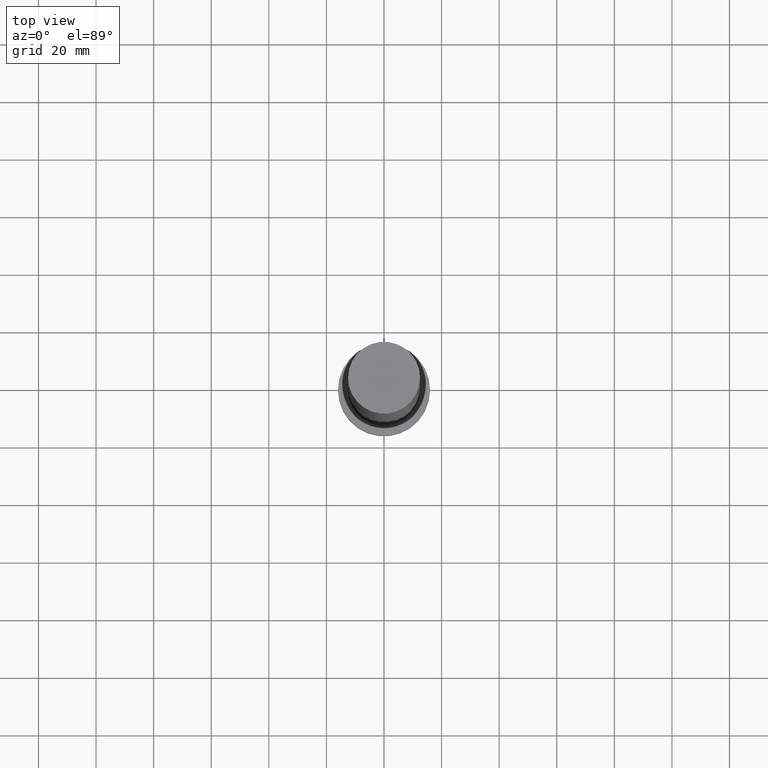
[diagram: clean part render]
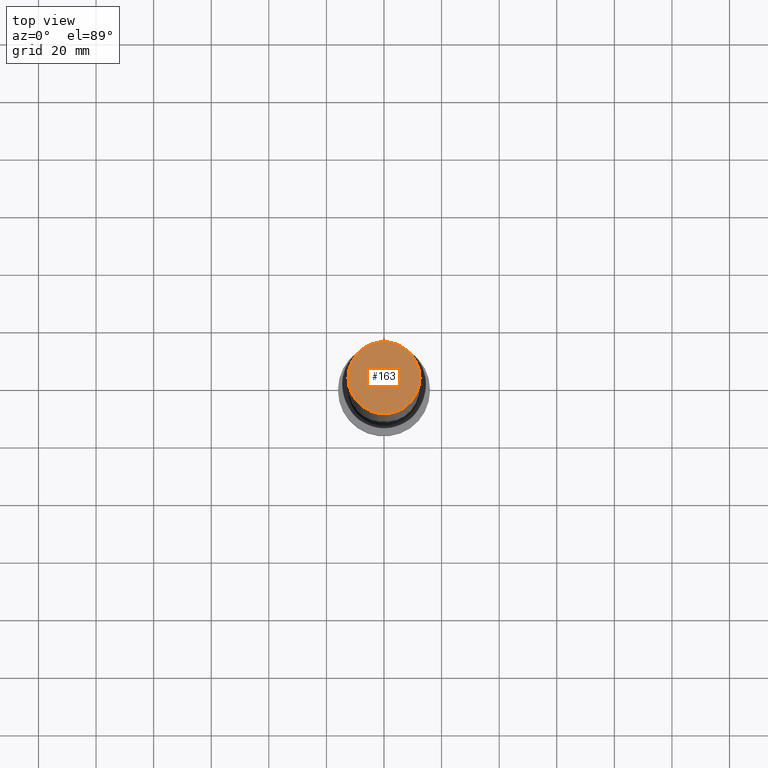
[diagram: same view with one face highlighted and labeled with its STEP entity id]
A machine part, top view. The second image highlights one B-rep face of the part: STEP entity #163.
In plain terms, the highlighted planar face has unit normal (0, 0, 1).
Its self-contained STEP definition (entity closure, byte-faithful):
#2 = FACE_OUTER_BOUND ( 'NONE', #192, .T. ) ;
#19 = PLANE ( 'NONE',  #237 ) ;
#42 = CIRCLE ( 'NONE', #215, 12.50000000000000000 ) ;
#50 = ORIENTED_EDGE ( 'NONE', *, *, #244, .T. ) ;
#72 = EDGE_CURVE ( 'NONE', #236, #240, #42, .T. ) ;
#73 = DIRECTION ( 'NONE',  ( 0.000000000000000000, 0.000000000000000000, 1.000000000000000000 ) ) ;
#77 = DIRECTION ( 'NONE',  ( 1.000000000000000000, 0.000000000000000000, -0.000000000000000000 ) ) ;
#95 = ORIENTED_EDGE ( 'NONE', *, *, #72, .T. ) ;
#96 = CARTESIAN_POINT ( 'NONE',  ( 12.50000000000000000, 1.530808498934191521E-15, 250.0000000000000000 ) ) ;
#103 = DIRECTION ( 'NONE',  ( 0.000000000000000000, 0.000000000000000000, 1.000000000000000000 ) ) ;
#131 = CARTESIAN_POINT ( 'NONE',  ( 0.000000000000000000, 0.000000000000000000, 250.0000000000000000 ) ) ;
#145 = DIRECTION ( 'NONE',  ( 1.000000000000000000, 0.000000000000000000, 0.000000000000000000 ) ) ;
#159 = CARTESIAN_POINT ( 'NONE',  ( 0.000000000000000000, 0.000000000000000000, 250.0000000000000000 ) ) ;
#163 = ADVANCED_FACE ( 'NONE', ( #2 ), #19, .T. ) ;
#170 = CARTESIAN_POINT ( 'NONE',  ( -12.50000000000000000, 0.000000000000000000, 250.0000000000000000 ) ) ;
#179 = CIRCLE ( 'NONE', #242, 12.50000000000000000 ) ;
#191 = DIRECTION ( 'NONE',  ( 0.000000000000000000, 0.000000000000000000, 1.000000000000000000 ) ) ;
#192 = EDGE_LOOP ( 'NONE', ( #95, #50 ) ) ;
#215 = AXIS2_PLACEMENT_3D ( 'NONE', #159, #103, #228 ) ;
#228 = DIRECTION ( 'NONE',  ( 1.000000000000000000, 0.000000000000000000, 0.000000000000000000 ) ) ;
#236 = VERTEX_POINT ( 'NONE', #170 ) ;
#237 = AXIS2_PLACEMENT_3D ( 'NONE', #131, #191, #77 ) ;
#240 = VERTEX_POINT ( 'NONE', #96 ) ;
#242 = AXIS2_PLACEMENT_3D ( 'NONE', #252, #73, #145 ) ;
#244 = EDGE_CURVE ( 'NONE', #240, #236, #179, .T. ) ;
#252 = CARTESIAN_POINT ( 'NONE',  ( 0.000000000000000000, 0.000000000000000000, 250.0000000000000000 ) ) ;